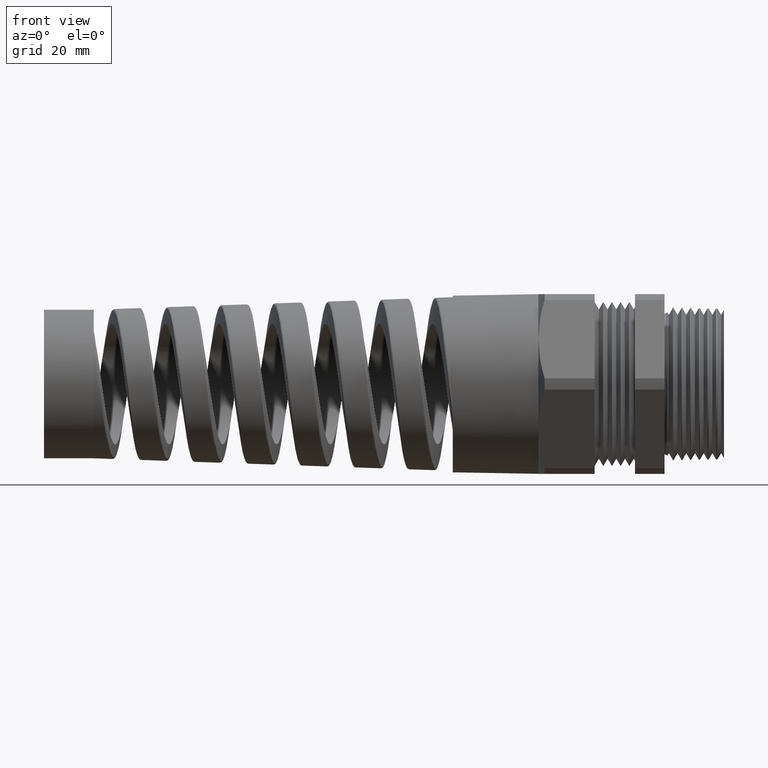
[diagram: clean part render]
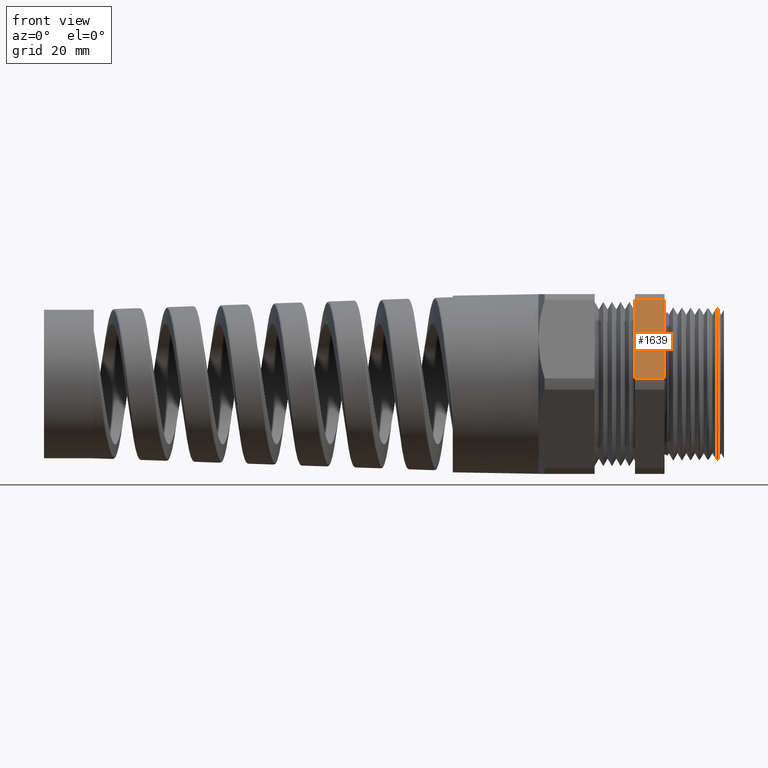
[diagram: same view with one face highlighted and labeled with its STEP entity id]
A machine part, front view. The second image highlights one B-rep face of the part: STEP entity #1639.
In plain terms, the highlighted planar face has unit normal (0, -0.866, 0.5).
Its self-contained STEP definition (entity closure, byte-faithful):
#1492 = VERTEX_POINT ( 'NONE', #9119 ) ;
#1495 = EDGE_CURVE ( 'NONE', #1492, #6808, #9106, .T. ) ;
#1508 = EDGE_CURVE ( 'NONE', #1492, #2629, #9149, .T. ) ;
#1639 = ADVANCED_FACE ( 'NONE', ( #9185 ), #9177, .T. ) ;
#1640 = ORIENTED_EDGE ( 'NONE', *, *, #2637, .T. ) ;
#1641 = ORIENTED_EDGE ( 'NONE', *, *, #1508, .T. ) ;
#1642 = EDGE_LOOP ( 'NONE', ( #1641, #1640, #2552, #2555 ) ) ;
#2552 = ORIENTED_EDGE ( 'NONE', *, *, #6061, .F. ) ;
#2555 = ORIENTED_EDGE ( 'NONE', *, *, #1495, .F. ) ;
#2629 = VERTEX_POINT ( 'NONE', #10879 ) ;
#2637 = EDGE_CURVE ( 'NONE', #2629, #13511, #10934, .T. ) ;
#6061 = EDGE_CURVE ( 'NONE', #6808, #13511, #12281, .T. ) ;
#6808 = VERTEX_POINT ( 'NONE', #12426 ) ;
#9104 = VECTOR ( 'NONE', #9169, 39.37007874015748100 ) ;
#9105 = CARTESIAN_POINT ( 'NONE',  ( -2.992185896283379200, -0.3989927496919437600, 0.6089242856819410100 ) ) ;
#9106 = LINE ( 'NONE', #9105, #9104 ) ;
#9119 = CARTESIAN_POINT ( 'NONE',  ( -0.2139303482587064900, -0.3989927496919442000, 0.6089242856819409000 ) ) ;
#9146 = DIRECTION ( 'NONE',  ( 0.0000000000000000000, -0.5000000000000000000, -0.8660254037844386000 ) ) ;
#9147 = VECTOR ( 'NONE', #9146, 39.37007874015748100 ) ;
#9148 = CARTESIAN_POINT ( 'NONE',  ( -0.2139303482587064900, -0.4145165124598847500, 0.5820363398432212300 ) ) ;
#9149 = LINE ( 'NONE', #9148, #9147 ) ;
#9169 = DIRECTION ( 'NONE',  ( 1.000000000000000000, 0.0000000000000000000, 0.0000000000000000000 ) ) ;
#9173 = DIRECTION ( 'NONE',  ( 0.0000000000000000000, -0.5000000000000000000, -0.8660254037844386000 ) ) ;
#9174 = DIRECTION ( 'NONE',  ( 0.0000000000000000000, -0.8660254037844387100, 0.5000000000000001100 ) ) ;
#9175 = CARTESIAN_POINT ( 'NONE',  ( -2.992185896283379200, -0.3989927496919439800, 0.6089242856819407900 ) ) ;
#9176 = AXIS2_PLACEMENT_3D ( 'NONE', #9175, #9174, #9173 ) ;
#9177 = PLANE ( 'NONE',  #9176 ) ;
#9185 = FACE_OUTER_BOUND ( 'NONE', #1642, .T. ) ;
#10879 = CARTESIAN_POINT ( 'NONE',  ( -0.2139303482587066300, -0.7268402752278255700, 0.04107571431805911300 ) ) ;
#10931 = DIRECTION ( 'NONE',  ( 1.000000000000000000, 0.0000000000000000000, 0.0000000000000000000 ) ) ;
#10932 = VECTOR ( 'NONE', #10931, 39.37007874015748100 ) ;
#10933 = CARTESIAN_POINT ( 'NONE',  ( -2.992185896283379200, -0.7268402752278255700, 0.04107571431805911300 ) ) ;
#10934 = LINE ( 'NONE', #10933, #10932 ) ;
#12278 = DIRECTION ( 'NONE',  ( 0.0000000000000000000, -0.5000000000000000000, -0.8660254037844386000 ) ) ;
#12279 = VECTOR ( 'NONE', #12278, 39.37007874015748900 ) ;
#12280 = CARTESIAN_POINT ( 'NONE',  ( 0.0000000000000000000, -0.3989927496919439800, 0.6089242856819407900 ) ) ;
#12281 = LINE ( 'NONE', #12280, #12279 ) ;
#12426 = CARTESIAN_POINT ( 'NONE',  ( 0.0000000000000000000, -0.3989927496919437600, 0.6089242856819410100 ) ) ;
#12741 = CARTESIAN_POINT ( 'NONE',  ( 0.0000000000000000000, -0.7268402752278255700, 0.04107571431805911300 ) ) ;
#13511 = VERTEX_POINT ( 'NONE', #12741 ) ;